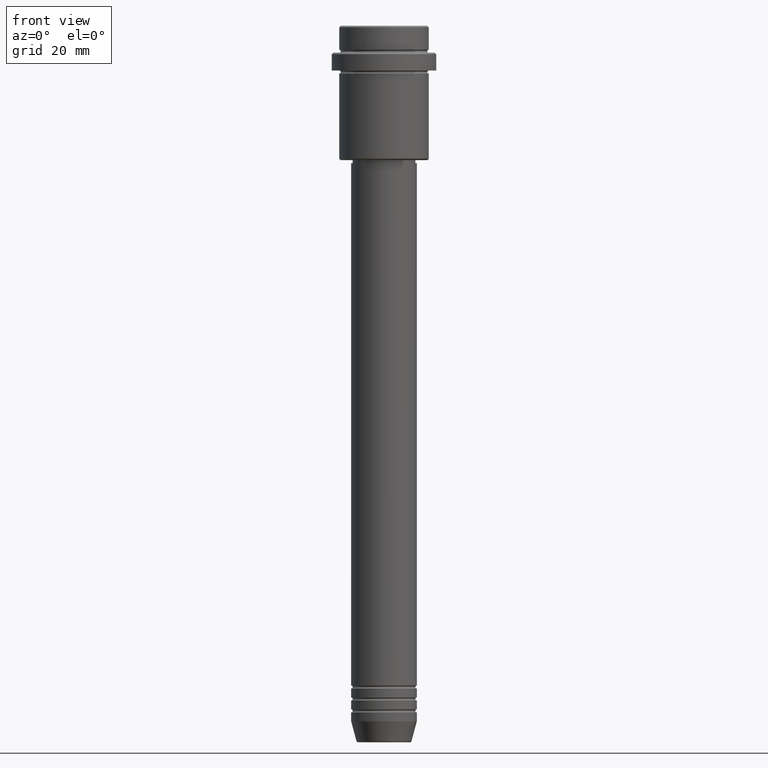
[diagram: clean part render]
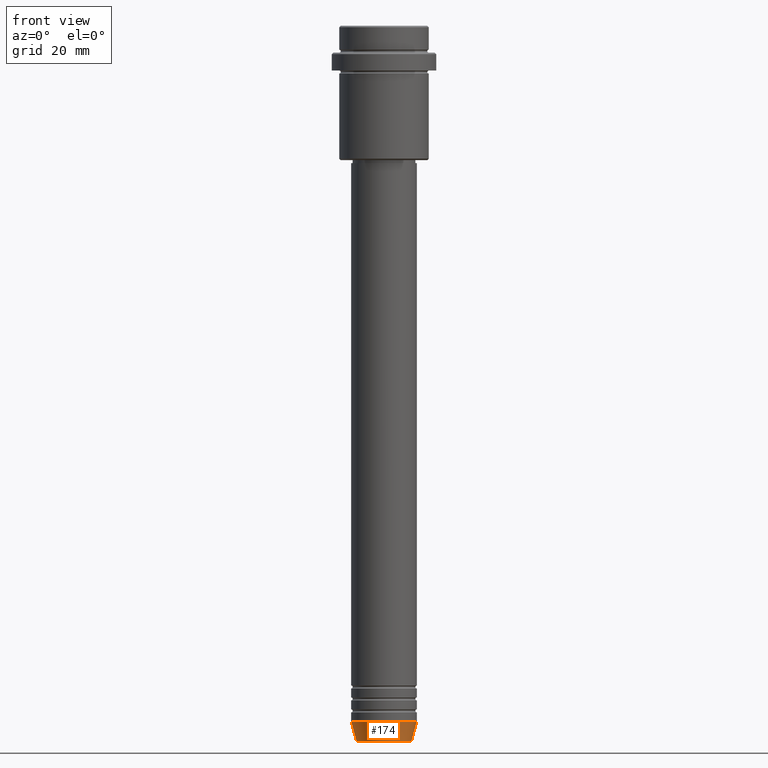
[diagram: same view with one face highlighted and labeled with its STEP entity id]
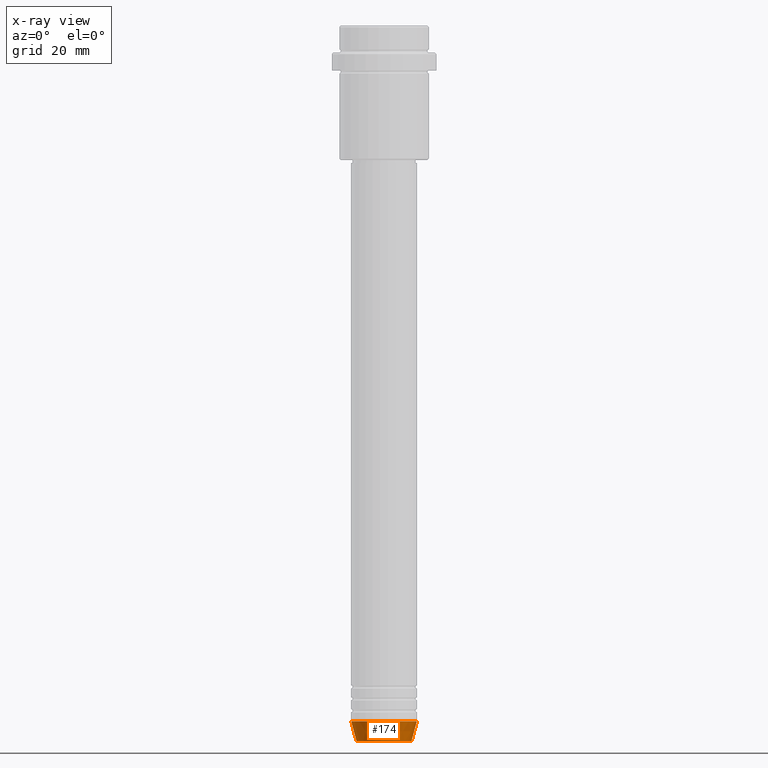
[diagram: x-ray of the same camera — body ghosted, the highlighted face saturated]
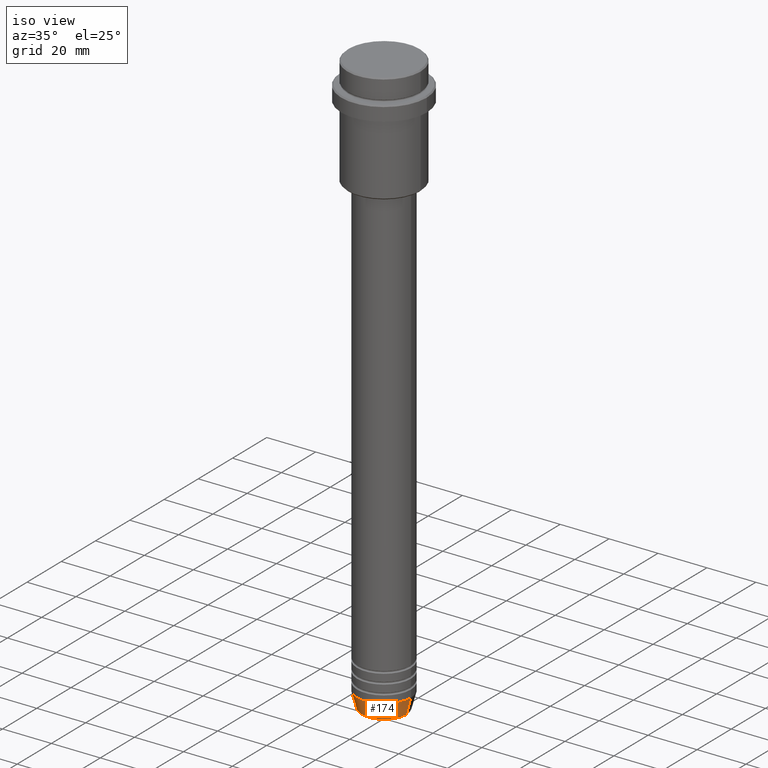
[diagram: same view with one face highlighted and labeled with its STEP entity id]
A machine part, front view. The second image highlights one B-rep face of the part: STEP entity #174.
The next image is the same camera in x-ray: the body ghosted, the highlighted face saturated — about 0% of this face is hidden behind the body in this view.
A second angle (iso view) of the same face is appended — the face is thin or edge-on in the first view.
In plain terms, the highlighted conical surface has half-angle 15 deg.
Its self-contained STEP definition (entity closure, byte-faithful):
#4 = DIRECTION ( 'NONE',  ( 1.000000000000000000, 0.000000000000000000, 0.000000000000000000 ) ) ;
#72 = ORIENTED_EDGE ( 'NONE', *, *, #897, .F. ) ;
#91 = LINE ( 'NONE', #645, #749 ) ;
#98 = DIRECTION ( 'NONE',  ( 0.2588190451025205174, 0.000000000000000000, 0.9659258262890684232 ) ) ;
#108 = AXIS2_PLACEMENT_3D ( 'NONE', #1199, #219, #122 ) ;
#121 = DIRECTION ( 'NONE',  ( -0.2588190451025205174, 3.169619151431761243E-17, 0.9659258262890684232 ) ) ;
#122 = DIRECTION ( 'NONE',  ( 1.000000000000000000, 0.000000000000000000, 0.000000000000000000 ) ) ;
#133 = CIRCLE ( 'NONE', #437, 9.223655072137201927 ) ;
#165 = CARTESIAN_POINT ( 'NONE',  ( -9.223655072137201927, 1.238341722557647793E-15, -239.6294095225512990 ) ) ;
#174 = ADVANCED_FACE ( 'NONE', ( #329 ), #1363, .T. ) ;
#219 = DIRECTION ( 'NONE',  ( -0.000000000000000000, -0.000000000000000000, 1.000000000000000000 ) ) ;
#272 = CARTESIAN_POINT ( 'NONE',  ( 0.000000000000000000, 0.000000000000000000, -233.0000000000000284 ) ) ;
#291 = ORIENTED_EDGE ( 'NONE', *, *, #596, .T. ) ;
#298 = VERTEX_POINT ( 'NONE', #165 ) ;
#329 = FACE_OUTER_BOUND ( 'NONE', #1018, .T. ) ;
#347 = LINE ( 'NONE', #451, #1302 ) ;
#376 = VERTEX_POINT ( 'NONE', #1398 ) ;
#437 = AXIS2_PLACEMENT_3D ( 'NONE', #1102, #461, #889 ) ;
#451 = CARTESIAN_POINT ( 'NONE',  ( -11.00000000000000000, 1.347111479062088405E-15, -233.0000000000000284 ) ) ;
#461 = DIRECTION ( 'NONE',  ( -0.000000000000000000, -0.000000000000000000, 1.000000000000000000 ) ) ;
#596 = EDGE_CURVE ( 'NONE', #1165, #827, #91, .T. ) ;
#635 = EDGE_CURVE ( 'NONE', #298, #1165, #133, .T. ) ;
#645 = CARTESIAN_POINT ( 'NONE',  ( 11.00000000000000000, 0.000000000000000000, -233.0000000000000284 ) ) ;
#723 = CARTESIAN_POINT ( 'NONE',  ( 9.223655072137201927, 0.000000000000000000, -239.6294095225512990 ) ) ;
#725 = CIRCLE ( 'NONE', #1349, 11.00000000000000000 ) ;
#749 = VECTOR ( 'NONE', #98, 1000.000000000000114 ) ;
#759 = ORIENTED_EDGE ( 'NONE', *, *, #635, .T. ) ;
#827 = VERTEX_POINT ( 'NONE', #1169 ) ;
#854 = ORIENTED_EDGE ( 'NONE', *, *, #1150, .F. ) ;
#889 = DIRECTION ( 'NONE',  ( 1.000000000000000000, 0.000000000000000000, 0.000000000000000000 ) ) ;
#897 = EDGE_CURVE ( 'NONE', #298, #376, #347, .T. ) ;
#982 = DIRECTION ( 'NONE',  ( -0.000000000000000000, -0.000000000000000000, 1.000000000000000000 ) ) ;
#1018 = EDGE_LOOP ( 'NONE', ( #72, #759, #291, #854 ) ) ;
#1102 = CARTESIAN_POINT ( 'NONE',  ( 0.000000000000000000, 0.000000000000000000, -239.6294095225512990 ) ) ;
#1150 = EDGE_CURVE ( 'NONE', #376, #827, #725, .T. ) ;
#1165 = VERTEX_POINT ( 'NONE', #723 ) ;
#1169 = CARTESIAN_POINT ( 'NONE',  ( 11.00000000000000000, 0.000000000000000000, -233.0000000000000284 ) ) ;
#1199 = CARTESIAN_POINT ( 'NONE',  ( 0.000000000000000000, 0.000000000000000000, -233.0000000000000284 ) ) ;
#1302 = VECTOR ( 'NONE', #121, 1000.000000000000114 ) ;
#1349 = AXIS2_PLACEMENT_3D ( 'NONE', #272, #982, #4 ) ;
#1363 = CONICAL_SURFACE ( 'NONE', #108, 11.00000000000000000, 0.2617993877991491303 ) ;
#1398 = CARTESIAN_POINT ( 'NONE',  ( -11.00000000000000000, 1.347111479062088405E-15, -233.0000000000000284 ) ) ;